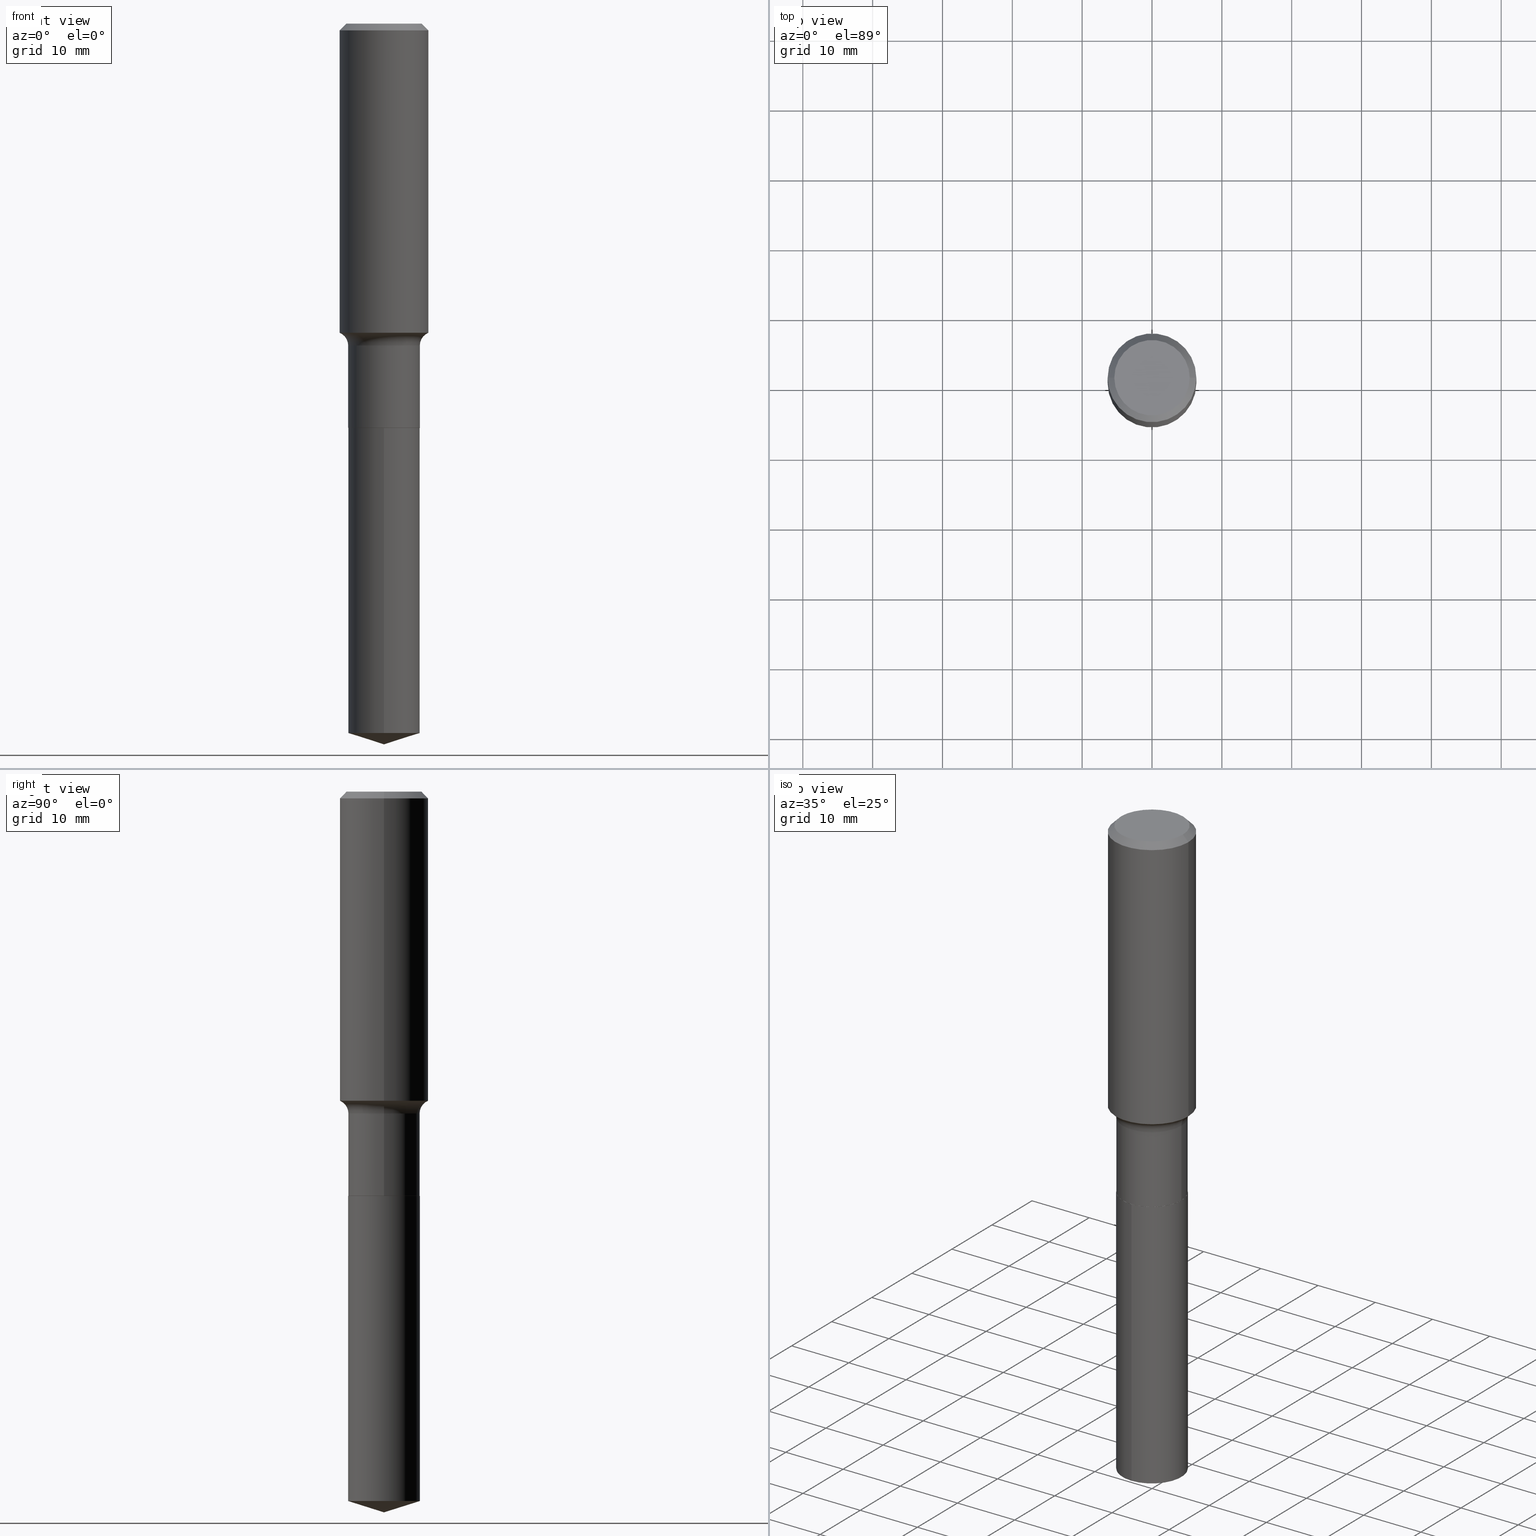
[diagram: canonical four-view strip — front | top / right | iso, engineering-drawing reading convention]
A machine part, canonical four-view strip (front | top / right | iso — engineering-drawing reading convention). The complete STEP part file that produces these views, byte-faithful:
ISO-10303-21;
HEADER;
FILE_DESCRIPTION (( 'STEP AP203' ),
    '1' );
FILE_NAME ('51621.STEP',
    '2024-04-19T13:13:10',
    ( '' ),
    ( '' ),
    'SwSTEP 2.0',
    'SolidWorks 2023',
    '' );
FILE_SCHEMA (( 'CONFIG_CONTROL_DESIGN' ));
ENDSEC;

DATA;
#1 = DIRECTION ( 'NONE',  ( -2.445468806185136877E-29, 3.491481338843145188E-15, 1.000000000000000000 ) ) ;
#2 = CIRCLE ( 'NONE', #10, 0.2124999999999999944 ) ;
#3 = PERSON_AND_ORGANIZATION ( #420, #24 ) ;
#4 = CARTESIAN_POINT ( 'NONE',  ( 4.260984847896982161E-29, -6.083557084800297028E-15, -1.742399999999999949 ) ) ;
#5 = CC_DESIGN_DATE_AND_TIME_ASSIGNMENT ( #343, #305, ( #66 ) ) ;
#6 = COORDINATED_UNIVERSAL_TIME_OFFSET ( 5, 0, .BEHIND. ) ;
#7 = PLANE ( 'NONE',  #235 ) ;
#8 = DIRECTION ( 'NONE',  ( -6.982962677686266711E-15, -1.000000000000000000, 2.704799993726993161E-15 ) ) ;
#9 = APPLICATION_PROTOCOL_DEFINITION ( 'international standard', 'config_control_design', 1994, #450 ) ;
#10 = AXIS2_PLACEMENT_3D ( 'NONE', #323, #476, #123 ) ;
#11 = CARTESIAN_POINT ( 'NONE',  ( -0.2015000000000000124, -6.522693131492816436E-15, -2.279000000000000359 ) ) ;
#12 = CARTESIAN_POINT ( 'NONE',  ( -0.2500000000000000000, 1.614810119214947994E-15, -0.03750000000000025535 ) ) ;
#13 = ORIENTED_EDGE ( 'NONE', *, *, #424, .F. ) ;
#14 = ORIENTED_EDGE ( 'NONE', *, *, #393, .F. ) ;
#15 = CLOSED_SHELL ( 'NONE', ( #25, #200, #342, #436, #328, #141, #242, #124, #267, #314, #210, #293 ) ) ;
#16 = CONICAL_SURFACE ( 'NONE', #143, 0.2500000000000000000, 0.7853981633974449483 ) ;
#17 = FACE_OUTER_BOUND ( 'NONE', #248, .T. ) ;
#18 = ORIENTED_EDGE ( 'NONE', *, *, #381, .F. ) ;
#19 = CIRCLE ( 'NONE', #398, 0.2500000000000000000 ) ;
#20 = ADVANCED_FACE ( 'NONE', ( #129 ), #116, .T. ) ;
#21 = ORIENTED_EDGE ( 'NONE', *, *, #371, .F. ) ;
#22 = CARTESIAN_POINT ( 'NONE',  ( 0.000000000000000000, 0.000000000000000000, 0.000000000000000000 ) ) ;
#23 = CARTESIAN_POINT ( 'NONE',  ( 5.573223409295926376E-29, -7.957085971223528811E-15, -2.279000000000000359 ) ) ;
#24 = ORGANIZATION ( 'UNSPECIFIED', 'UNSPECIFIED', '' ) ;
#25 = ADVANCED_FACE ( 'NONE', ( #172 ), #373, .T. ) ;
#26 = EDGE_LOOP ( 'NONE', ( #281, #158, #83 ) ) ;
#27 = CARTESIAN_POINT ( 'NONE',  ( -8.634659461838543799E-28, 1.232714386671880795E-13, 35.30757874015748143 ) ) ;
#28 = CARTESIAN_POINT ( 'NONE',  ( 0.2015000000000000124, -9.364152950777312752E-15, -2.279000000000000359 ) ) ;
#29 = CARTESIAN_POINT ( 'NONE',  ( -1.591006383764330940E-46, 2.271535455632768948E-32, 6.505936120470318766E-18 ) ) ;
#30 = APPLICATION_PROTOCOL_DEFINITION ( 'international standard', 'config_control_design', 1994, #417 ) ;
#31 = DIRECTION ( 'NONE',  ( 1.000000000000000000, -6.982962677686267499E-15, 4.876176775795936353E-29 ) ) ;
#32 = CC_DESIGN_APPROVAL ( #460, ( #223 ) ) ;
#33 = VERTEX_POINT ( 'NONE', #266 ) ;
#34 = FACE_OUTER_BOUND ( 'NONE', #404, .T. ) ;
#35 = CYLINDRICAL_SURFACE ( 'NONE', #214, 0.2500000000000000555 ) ;
#36 = ORIENTED_EDGE ( 'NONE', *, *, #160, .F. ) ;
#37 = CARTESIAN_POINT ( 'NONE',  ( 0.2500000000000000555, -1.745740669421567269E-15, 1.219044193948984228E-29 ) ) ;
#38 = CARTESIAN_POINT ( 'NONE',  ( 0.2500000000000000000, -1.846055049649501575E-15, -0.03750000000000025535 ) ) ;
#39 = LINE ( 'NONE', #104, #429 ) ;
#40 = EDGE_CURVE ( 'NONE', #324, #212, #45, .T. ) ;
#41 = DIRECTION ( 'NONE',  ( 2.445468806185136597E-29, -3.491481338843145583E-15, -1.000000000000000000 ) ) ;
#42 = LINE ( 'NONE', #98, #415 ) ;
#43 = EDGE_CURVE ( 'NONE', #324, #372, #386, .T. ) ;
#44 = DIRECTION ( 'NONE',  ( 1.000000000000000000, -6.982962677686272233E-15, 0.000000000000000000 ) ) ;
#45 = CIRCLE ( 'NONE', #354, 0.2020000000000000129 ) ;
#46 = CC_DESIGN_SECURITY_CLASSIFICATION ( #223, ( #151 ) ) ;
#47 = AXIS2_PLACEMENT_3D ( 'NONE', #225, #150, #313 ) ;
#48 = CARTESIAN_POINT ( 'NONE',  ( 9.170508023194324245E-31, -1.309305502066188567E-16, -0.03750000000000025535 ) ) ;
#49 = DATE_TIME_ROLE ( 'classification_date' ) ;
#50 = ORIENTED_EDGE ( 'NONE', *, *, #236, .T. ) ;
#51 = CARTESIAN_POINT ( 'NONE',  ( 9.779102073353615389E-29, -1.396157187791072146E-14, -3.998809644646446504 ) ) ;
#52 = EDGE_CURVE ( 'NONE', #287, #358, #423, .T. ) ;
#53 = AXIS2_PLACEMENT_3D ( 'NONE', #430, #165, #44 ) ;
#54 = ORIENTED_EDGE ( 'NONE', *, *, #251, .T. ) ;
#55 = CARTESIAN_POINT ( 'NONE',  ( 9.934677315770503263E-29, -1.418419980510906757E-14, -4.062500000000000000 ) ) ;
#56 = UNCERTAINTY_MEASURE_WITH_UNIT (LENGTH_MEASURE( 1.000000000000000082E-05 ), #356, 'distance_accuracy_value', 'NONE');
#57 = EDGE_CURVE ( 'NONE', #358, #33, #93, .T. ) ;
#58 = DIRECTION ( 'NONE',  ( -6.659769872151633666E-15, -0.9537169507482269326, 0.3007057995042729526 ) ) ;
#59 = FACE_OUTER_BOUND ( 'NONE', #322, .T. ) ;
#60 = DIRECTION ( 'NONE',  ( -6.982962677686266711E-15, -1.000000000000000000, 4.057199990590489741E-15 ) ) ;
#61 = CARTESIAN_POINT ( 'NONE',  ( 5.573223409295926376E-29, -7.957085971223528811E-15, -2.279000000000000359 ) ) ;
#62 = CARTESIAN_POINT ( 'NONE',  ( 0.000000000000000000, 0.000000000000000000, 0.000000000000000000 ) ) ;
#63 = ORIENTED_EDGE ( 'NONE', *, *, #258, .F. ) ;
#64 = ORIENTED_EDGE ( 'NONE', *, *, #352, .T. ) ;
#65 = PLANE ( 'NONE',  #437 ) ;
#66 = PRODUCT_DEFINITION ( 'UNKNOWN', '', #151, #326 ) ;
#67 = PRODUCT ( '51621', '51621', '', ( #325 ) ) ;
#68 = DIRECTION ( 'NONE',  ( -2.445468806185136597E-29, 3.491481338843145583E-15, 1.000000000000000000 ) ) ;
#69 = VERTEX_POINT ( 'NONE', #383 ) ;
#70 = AXIS2_PLACEMENT_3D ( 'NONE', #394, #360, #240 ) ;
#71 = PERSON_AND_ORGANIZATION_ROLE ( 'creator' ) ;
#72 = FACE_OUTER_BOUND ( 'NONE', #435, .T. ) ;
#73 =( GEOMETRIC_REPRESENTATION_CONTEXT ( 3 ) GLOBAL_UNCERTAINTY_ASSIGNED_CONTEXT ( ( #56 ) ) GLOBAL_UNIT_ASSIGNED_CONTEXT ( ( #356, #431, #159 ) ) REPRESENTATION_CONTEXT ( 'NONE', 'WORKASPACE' ) );
#74 = EDGE_CURVE ( 'NONE', #337, #482, #411, .T. ) ;
#75 = CYLINDRICAL_SURFACE ( 'NONE', #397, 0.2019999999999999851 ) ;
#76 = FACE_OUTER_BOUND ( 'NONE', #86, .T. ) ;
#77 = CIRCLE ( 'NONE', #178, 0.2020000000000000129 ) ;
#78 = AXIS2_PLACEMENT_3D ( 'NONE', #29, #227, #260 ) ;
#79 = DIRECTION ( 'NONE',  ( -6.982962677686266711E-15, -1.000000000000000000, 4.057199990590489741E-15 ) ) ;
#80 = FACE_OUTER_BOUND ( 'NONE', #208, .T. ) ;
#81 = DIRECTION ( 'NONE',  ( 1.000000000000000000, -6.982962677686265133E-15, 4.883557194083111780E-29 ) ) ;
#82 = DIRECTION ( 'NONE',  ( -2.445548946158121065E-29, 3.491366573840548016E-15, 1.000000000000000000 ) ) ;
#83 = ORIENTED_EDGE ( 'NONE', *, *, #286, .F. ) ;
#84 = CC_DESIGN_PERSON_AND_ORGANIZATION_ASSIGNMENT ( #416, #71, ( #66 ) ) ;
#85 = VERTEX_POINT ( 'NONE', #142 ) ;
#86 = EDGE_LOOP ( 'NONE', ( #13, #184, #167, #63 ) ) ;
#87 = VECTOR ( 'NONE', #306, 39.37007874015748143 ) ;
#88 = CARTESIAN_POINT ( 'NONE',  ( 0.2124999999999999944, -1.651955437087975937E-15, 6.505936120481282700E-18 ) ) ;
#89 = CIRCLE ( 'NONE', #78, 0.2124999999999999944 ) ;
#90 = ORIENTED_EDGE ( 'NONE', *, *, #334, .F. ) ;
#91 = ORIENTED_EDGE ( 'NONE', *, *, #236, .F. ) ;
#92 = ORIENTED_EDGE ( 'NONE', *, *, #251, .F. ) ;
#93 = CIRCLE ( 'NONE', #224, 0.2020000000000000129 ) ;
#94 = ORIENTED_EDGE ( 'NONE', *, *, #217, .F. ) ;
#95 = VECTOR ( 'NONE', #218, 39.37007874015748143 ) ;
#96 = DIRECTION ( 'NONE',  ( -2.445548946158121065E-29, 3.491366573840548016E-15, 1.000000000000000000 ) ) ;
#97 = ORIENTED_EDGE ( 'NONE', *, *, #371, .T. ) ;
#98 = CARTESIAN_POINT ( 'NONE',  ( -0.2019999999999999851, 1.435296326235402270E-15, -9.936248882314910004E-30 ) ) ;
#99 = ORIENTED_EDGE ( 'NONE', *, *, #362, .F. ) ;
#100 = AXIS2_PLACEMENT_3D ( 'NONE', #22, #128, #475 ) ;
#101 = AXIS2_PLACEMENT_3D ( 'NONE', #491, #345, #140 ) ;
#102 = EDGE_CURVE ( 'NONE', #292, #212, #39, .T. ) ;
#103 = APPROVAL_STATUS ( 'not_yet_approved' ) ;
#104 = CARTESIAN_POINT ( 'NONE',  ( -0.2015000000000000124, -6.525342358666926848E-15, -2.279000000000000359 ) ) ;
#105 = DIRECTION ( 'NONE',  ( -2.445468806185136597E-29, 3.491481338843145583E-15, 1.000000000000000000 ) ) ;
#106 = PERSON_AND_ORGANIZATION ( #420, #24 ) ;
#107 = CARTESIAN_POINT ( 'NONE',  ( 5.573223409295926376E-29, -7.957085971223528811E-15, -2.279000000000000359 ) ) ;
#108 = LOCAL_TIME ( 9, 13, 10.00000000000000000, #137 ) ;
#109 = AXIS2_PLACEMENT_3D ( 'NONE', #483, #132, #311 ) ;
#110 = VECTOR ( 'NONE', #213, 39.37007874015748143 ) ;
#111 = PERSON_AND_ORGANIZATION_ROLE ( 'classification_officer' ) ;
#112 = EDGE_CURVE ( 'NONE', #147, #378, #288, .T. ) ;
#113 = EDGE_LOOP ( 'NONE', ( #265, #433, #138, #207 ) ) ;
#114 = CARTESIAN_POINT ( 'NONE',  ( 9.935042593767365302E-29, -1.418367670622722693E-14, -4.062500000000000000 ) ) ;
#115 = VERTEX_POINT ( 'NONE', #146 ) ;
#116 = CONICAL_SURFACE ( 'NONE', #125, 124.8659371009154597, 1.265363707695892570 ) ;
#117 = AXIS2_PLACEMENT_3D ( 'NONE', #377, #339, #309 ) ;
#118 = EDGE_CURVE ( 'NONE', #212, #378, #42, .T. ) ;
#119 = AXIS2_PLACEMENT_3D ( 'NONE', #51, #243, #316 ) ;
#120 = VERTEX_POINT ( 'NONE', #271 ) ;
#121 = ADVANCED_BREP_SHAPE_REPRESENTATION ( '51621', ( #156, #333, #100 ), #73 ) ;
#122 = DIRECTION ( 'NONE',  ( -2.445468806185136597E-29, 3.491481338843145583E-15, 1.000000000000000000 ) ) ;
#123 = DIRECTION ( 'NONE',  ( 1.000000000000000000, -6.982962677686266711E-15, 4.876376119033268190E-29 ) ) ;
#124 = ADVANCED_FACE ( 'NONE', ( #72 ), #35, .T. ) ;
#125 = AXIS2_PLACEMENT_3D ( 'NONE', #369, #96, #438 ) ;
#126 = FACE_OUTER_BOUND ( 'NONE', #302, .T. ) ;
#127 = ORIENTED_EDGE ( 'NONE', *, *, #40, .F. ) ;
#128 = DIRECTION ( 'NONE',  ( 0.000000000000000000, 0.000000000000000000, 1.000000000000000000 ) ) ;
#129 = FACE_OUTER_BOUND ( 'NONE', #26, .T. ) ;
#130 = DIRECTION ( 'NONE',  ( -2.445548946158121065E-29, 3.491366573840548016E-15, 1.000000000000000000 ) ) ;
#131 = ORIENTED_EDGE ( 'NONE', *, *, #40, .T. ) ;
#132 = DIRECTION ( 'NONE',  ( -2.445468806185136597E-29, 3.491481338843145583E-15, 1.000000000000000000 ) ) ;
#133 = CC_DESIGN_PERSON_AND_ORGANIZATION_ASSIGNMENT ( #303, #443, ( #67 ) ) ;
#134 = LINE ( 'NONE', #380, #95 ) ;
#135 = EDGE_LOOP ( 'NONE', ( #391, #162, #127, #18 ) ) ;
#136 = CONICAL_SURFACE ( 'NONE', #53, 0.2015000000000000124, 0.7853981633975507526 ) ;
#137 = COORDINATED_UNIVERSAL_TIME_OFFSET ( 5, 0, .BEHIND. ) ;
#138 = ORIENTED_EDGE ( 'NONE', *, *, #307, .F. ) ;
#139 = ORIENTED_EDGE ( 'NONE', *, *, #112, .F. ) ;
#140 = DIRECTION ( 'NONE',  ( 1.000000000000000000, -6.982962677686265922E-15, 0.000000000000000000 ) ) ;
#141 = ADVANCED_FACE ( 'NONE', ( #419 ), #75, .T. ) ;
#142 = CARTESIAN_POINT ( 'NONE',  ( -0.2124999999999999944, 1.549344844111639638E-15, 6.505936120459713055E-18 ) ) ;
#143 = AXIS2_PLACEMENT_3D ( 'NONE', #385, #41, #192 ) ;
#144 = AXIS2_PLACEMENT_3D ( 'NONE', #238, #432, #206 ) ;
#145 = PERSON_AND_ORGANIZATION ( #420, #24 ) ;
#146 = CARTESIAN_POINT ( 'NONE',  ( 0.2500000000000002220, -7.829297754221866861E-15, -1.742399999999999949 ) ) ;
#147 = VERTEX_POINT ( 'NONE', #194 ) ;
#148 = CARTESIAN_POINT ( 'NONE',  ( 5.573223409295926376E-29, -7.957085971223528811E-15, -2.279000000000000359 ) ) ;
#149 = EDGE_CURVE ( 'NONE', #115, #372, #152, .T. ) ;
#150 = DIRECTION ( 'NONE',  ( -6.982962677686266711E-15, -1.000000000000000000, 3.491481338843145583E-15 ) ) ;
#151 = PRODUCT_DEFINITION_FORMATION_WITH_SPECIFIED_SOURCE ( 'ANY', '', #67, .NOT_KNOWN. ) ;
#152 = CIRCLE ( 'NONE', #47, 0.07800000000000002764 ) ;
#153 = CONICAL_SURFACE ( 'NONE', #289, 124.8659371009154597, 1.265363707695892570 ) ;
#154 = PLANE ( 'NONE',  #298 ) ;
#155 =( LENGTH_UNIT ( ) NAMED_UNIT ( * ) SI_UNIT ( $, .METRE. ) );
#156 = MANIFOLD_SOLID_BREP ( 'Body-Move/Copy2[1]', #312 ) ;
#157 = DIRECTION ( 'NONE',  ( -0.7071067811865451302, 2.468850131082231817E-15, -0.7071067811865499042 ) ) ;
#158 = ORIENTED_EDGE ( 'NONE', *, *, #52, .T. ) ;
#159 =( NAMED_UNIT ( * ) SI_UNIT ( $, .STERADIAN. ) SOLID_ANGLE_UNIT ( ) );
#160 = EDGE_CURVE ( 'NONE', #378, #372, #282, .T. ) ;
#161 = CARTESIAN_POINT ( 'NONE',  ( 4.437058601942312503E-29, -6.334943741197003797E-15, -1.814400000000000235 ) ) ;
#162 = ORIENTED_EDGE ( 'NONE', *, *, #102, .T. ) ;
#163 = CIRCLE ( 'NONE', #101, 0.2500000000000001665 ) ;
#164 = AXIS2_PLACEMENT_3D ( 'NONE', #48, #426, #321 ) ;
#165 = DIRECTION ( 'NONE',  ( -2.445468806185136597E-29, 3.491481338843145583E-15, 1.000000000000000000 ) ) ;
#166 = ORIENTED_EDGE ( 'NONE', *, *, #217, .T. ) ;
#167 = ORIENTED_EDGE ( 'NONE', *, *, #307, .T. ) ;
#168 = EDGE_CURVE ( 'NONE', #115, #147, #163, .T. ) ;
#169 = CYLINDRICAL_SURFACE ( 'NONE', #283, 0.2019999999999999851 ) ;
#170 = LINE ( 'NONE', #492, #464 ) ;
#171 = ORIENTED_EDGE ( 'NONE', *, *, #43, .F. ) ;
#172 = FACE_OUTER_BOUND ( 'NONE', #135, .T. ) ;
#173 = APPROVAL ( #490, 'UNSPECIFIED' ) ;
#174 = DIRECTION ( 'NONE',  ( 0.7071067811866199593, -2.468850131083015945E-15, 0.7071067811864750752 ) ) ;
#175 = CARTESIAN_POINT ( 'NONE',  ( 5.573223409295926376E-29, -7.957085971223528811E-15, -2.279000000000000359 ) ) ;
#176 = LOCAL_TIME ( 9, 13, 10.00000000000000000, #229 ) ;
#177 = APPROVAL_ROLE ( '' ) ;
#178 = AXIS2_PLACEMENT_3D ( 'NONE', #107, #275, #79 ) ;
#179 = ORIENTED_EDGE ( 'NONE', *, *, #381, .T. ) ;
#180 = VECTOR ( 'NONE', #157, 39.37007874015748143 ) ;
#181 = CARTESIAN_POINT ( 'NONE',  ( 4.437058601942312503E-29, -6.334943741197003797E-15, -1.814400000000000235 ) ) ;
#182 = EDGE_CURVE ( 'NONE', #147, #115, #486, .T. ) ;
#183 = CARTESIAN_POINT ( 'NONE',  ( -0.2799999999999999711, -4.345424081068723876E-15, -1.814400000000000235 ) ) ;
#184 = ORIENTED_EDGE ( 'NONE', *, *, #74, .T. ) ;
#185 = DIRECTION ( 'NONE',  ( -2.445468806185136877E-29, 3.491481338843145188E-15, 1.000000000000000000 ) ) ;
#186 = CALENDAR_DATE ( 2024, 19, 4 ) ;
#187 = CARTESIAN_POINT ( 'NONE',  ( 0.000000000000000000, 0.000000000000000000, 0.000000000000000000 ) ) ;
#188 = PERSON_AND_ORGANIZATION ( #420, #24 ) ;
#189 = DIRECTION ( 'NONE',  ( -2.445468806185136597E-29, 3.491481338843145583E-15, 1.000000000000000000 ) ) ;
#190 = AXIS2_PLACEMENT_3D ( 'NONE', #161, #203, #81 ) ;
#191 = PERSON_AND_ORGANIZATION_ROLE ( 'design_supplier' ) ;
#192 = DIRECTION ( 'NONE',  ( -1.000000000000000000, 6.982962677686266711E-15, 0.000000000000000000 ) ) ;
#193 = PRODUCT_RELATED_PRODUCT_CATEGORY ( 'detail', '', ( #67 ) ) ;
#194 = CARTESIAN_POINT ( 'NONE',  ( -0.2500000000000002220, -4.307200245400044985E-15, -1.742399999999999949 ) ) ;
#195 = CARTESIAN_POINT ( 'NONE',  ( 5.573223409295926376E-29, -7.957085971223528811E-15, -2.279000000000000359 ) ) ;
#196 = SHAPE_DEFINITION_REPRESENTATION ( #466, #121 ) ;
#197 = FACE_OUTER_BOUND ( 'NONE', #485, .T. ) ;
#198 = APPROVAL_DATE_TIME ( #390, #460 ) ;
#199 = EDGE_LOOP ( 'NONE', ( #291, #263, #318, #36 ) ) ;
#200 = ADVANCED_FACE ( 'NONE', ( #76 ), #16, .T. ) ;
#201 = SECURITY_CLASSIFICATION_LEVEL ( 'unclassified' ) ;
#202 = ORIENTED_EDGE ( 'NONE', *, *, #182, .F. ) ;
#203 = DIRECTION ( 'NONE',  ( -2.445468806185136597E-29, 3.491481338843145583E-15, 1.000000000000000000 ) ) ;
#204 = ORIENTED_EDGE ( 'NONE', *, *, #102, .F. ) ;
#205 = VECTOR ( 'NONE', #185, 39.37007874015748143 ) ;
#206 = DIRECTION ( 'NONE',  ( 1.000000000000000000, -6.982962677686266711E-15, 0.000000000000000000 ) ) ;
#207 = ORIENTED_EDGE ( 'NONE', *, *, #454, .F. ) ;
#208 = EDGE_LOOP ( 'NONE', ( #441, #97, #94, #14 ) ) ;
#209 = DIMENSIONAL_EXPONENTS ( 1.000000000000000000, 0.000000000000000000, 0.000000000000000000, 0.000000000000000000, 0.000000000000000000, 0.000000000000000000, 0.000000000000000000 ) ;
#210 = ADVANCED_FACE ( 'NONE', ( #347 ), #7, .F. ) ;
#211 = DIRECTION ( 'NONE',  ( -2.445468806185136597E-29, 3.491481338843145583E-15, 1.000000000000000000 ) ) ;
#212 = VERTEX_POINT ( 'NONE', #461 ) ;
#213 = DIRECTION ( 'NONE',  ( -2.445548946158121065E-29, 3.491366573840547621E-15, 1.000000000000000000 ) ) ;
#214 = AXIS2_PLACEMENT_3D ( 'NONE', #418, #189, #234 ) ;
#215 = AXIS2_PLACEMENT_3D ( 'NONE', #353, #122, #465 ) ;
#216 = CARTESIAN_POINT ( 'NONE',  ( 5.573223409295926376E-29, -7.957085971223528811E-15, -2.279000000000000359 ) ) ;
#217 = EDGE_CURVE ( 'NONE', #259, #452, #77, .T. ) ;
#218 = DIRECTION ( 'NONE',  ( -2.445548946158121065E-29, 3.491366573840547621E-15, 1.000000000000000000 ) ) ;
#219 = CARTESIAN_POINT ( 'NONE',  ( -0.2019999999999999574, -5.709845659640153480E-15, -1.814400000000000235 ) ) ;
#220 = ORIENTED_EDGE ( 'NONE', *, *, #182, .T. ) ;
#221 = DIRECTION ( 'NONE',  ( 6.982962677686265922E-15, 1.000000000000000000, -3.491366573840547621E-15 ) ) ;
#222 = EDGE_CURVE ( 'NONE', #372, #378, #365, .T. ) ;
#223 = SECURITY_CLASSIFICATION ( '', '', #201 ) ;
#224 = AXIS2_PLACEMENT_3D ( 'NONE', #230, #456, #8 ) ;
#225 = CARTESIAN_POINT ( 'NONE',  ( 0.2799999999999999711, -8.290173290949158003E-15, -1.814400000000000235 ) ) ;
#226 = ORIENTED_EDGE ( 'NONE', *, *, #222, .T. ) ;
#227 = DIRECTION ( 'NONE',  ( -2.445468806185136597E-29, 3.491481338843145583E-15, 1.000000000000000000 ) ) ;
#228 = CIRCLE ( 'NONE', #278, 0.2015000000000000124 ) ;
#229 = COORDINATED_UNIVERSAL_TIME_OFFSET ( 5, 0, .BEHIND. ) ;
#230 = CARTESIAN_POINT ( 'NONE',  ( 9.779102073353615389E-29, -1.396157187791072146E-14, -3.998809644646446504 ) ) ;
#231 = APPROVAL_ROLE ( '' ) ;
#232 = DIRECTION ( 'NONE',  ( 1.000000000000000000, -6.982962677686267499E-15, 4.876176775795936353E-29 ) ) ;
#233 = CALENDAR_DATE ( 2024, 19, 4 ) ;
#234 = DIRECTION ( 'NONE',  ( 1.000000000000000000, -6.982962677686267499E-15, 4.876176775795935793E-29 ) ) ;
#235 = AXIS2_PLACEMENT_3D ( 'NONE', #148, #349, #310 ) ;
#236 = EDGE_CURVE ( 'NONE', #69, #482, #449, .T. ) ;
#237 = CIRCLE ( 'NONE', #119, 0.2020000000000000129 ) ;
#238 = CARTESIAN_POINT ( 'NONE',  ( 4.437058601942312503E-29, -6.334943741197003797E-15, -1.814400000000000235 ) ) ;
#239 = CYLINDRICAL_SURFACE ( 'NONE', #255, 0.2020000000000000129 ) ;
#240 = DIRECTION ( 'NONE',  ( -1.000000000000000000, 6.982962677686266711E-15, 0.000000000000000000 ) ) ;
#241 = PERSON_AND_ORGANIZATION ( #420, #24 ) ;
#242 = ADVANCED_FACE ( 'NONE', ( #280 ), #344, .F. ) ;
#243 = DIRECTION ( 'NONE',  ( -2.445548946158121065E-29, 3.491366573840548016E-15, 1.000000000000000000 ) ) ;
#244 = ORIENTED_EDGE ( 'NONE', *, *, #57, .T. ) ;
#245 = PERSON_AND_ORGANIZATION_ROLE ( 'creator' ) ;
#246 = CARTESIAN_POINT ( 'NONE',  ( 9.170508023194324245E-31, -1.309305502066188567E-16, -0.03750000000000025535 ) ) ;
#247 = LINE ( 'NONE', #12, #180 ) ;
#248 = EDGE_LOOP ( 'NONE', ( #204, #331, #179, #297 ) ) ;
#249 = EDGE_LOOP ( 'NONE', ( #139, #392, #439, #226 ) ) ;
#250 = LOCAL_TIME ( 9, 13, 10.00000000000000000, #274 ) ;
#251 = EDGE_CURVE ( 'NONE', #452, #259, #319, .T. ) ;
#252 = AXIS2_PLACEMENT_3D ( 'NONE', #183, #458, #341 ) ;
#253 = CIRCLE ( 'NONE', #487, 0.2015000000000000124 ) ;
#254 = LINE ( 'NONE', #55, #315 ) ;
#255 = AXIS2_PLACEMENT_3D ( 'NONE', #195, #425, #387 ) ;
#256 = ORIENTED_EDGE ( 'NONE', *, *, #414, .F. ) ;
#257 = DIRECTION ( 'NONE',  ( -2.445468806185136877E-29, 3.491481338843145188E-15, 1.000000000000000000 ) ) ;
#258 = EDGE_CURVE ( 'NONE', #85, #69, #247, .T. ) ;
#259 = VERTEX_POINT ( 'NONE', #389 ) ;
#260 = DIRECTION ( 'NONE',  ( 1.000000000000000000, -6.982962677686266711E-15, 4.876376119033268190E-29 ) ) ;
#261 = VECTOR ( 'NONE', #174, 39.37007874015748143 ) ;
#262 = DIRECTION ( 'NONE',  ( 1.000000000000000000, -6.982962677686267499E-15, 4.876176775795935793E-29 ) ) ;
#263 = ORIENTED_EDGE ( 'NONE', *, *, #272, .T. ) ;
#264 = DIRECTION ( 'NONE',  ( 1.000000000000000000, -6.982962677686265133E-15, 0.000000000000000000 ) ) ;
#265 = ORIENTED_EDGE ( 'NONE', *, *, #168, .T. ) ;
#266 = CARTESIAN_POINT ( 'NONE',  ( -1.410558460892528341E-15, -0.2020000000000140572, -3.998809644646445616 ) ) ;
#267 = ADVANCED_FACE ( 'NONE', ( #473 ), #472, .T. ) ;
#268 = APPROVAL_PERSON_ORGANIZATION ( #145, #460, #277 ) ;
#269 = DIRECTION ( 'NONE',  ( 1.000000000000000000, -6.982962677686265922E-15, 0.000000000000000000 ) ) ;
#270 = COORDINATED_UNIVERSAL_TIME_OFFSET ( 5, 0, .BEHIND. ) ;
#271 = CARTESIAN_POINT ( 'NONE',  ( 0.2015000000000000124, -9.364152950777312752E-15, -2.279000000000000359 ) ) ;
#272 = EDGE_CURVE ( 'NONE', #212, #324, #276, .T. ) ;
#273 = DIRECTION ( 'NONE',  ( 0.7071067811865451302, -7.319954787623248157E-15, -0.7071067811865499042 ) ) ;
#274 = COORDINATED_UNIVERSAL_TIME_OFFSET ( 5, 0, .BEHIND. ) ;
#275 = DIRECTION ( 'NONE',  ( -2.445548946158121065E-29, 3.491366573840548016E-15, 1.000000000000000000 ) ) ;
#276 = CIRCLE ( 'NONE', #215, 0.2020000000000000129 ) ;
#277 = APPROVAL_ROLE ( '' ) ;
#278 = AXIS2_PLACEMENT_3D ( 'NONE', #61, #368, #340 ) ;
#279 = CC_DESIGN_PERSON_AND_ORGANIZATION_ASSIGNMENT ( #106, #245, ( #151 ) ) ;
#280 = FACE_OUTER_BOUND ( 'NONE', #249, .T. ) ;
#281 = ORIENTED_EDGE ( 'NONE', *, *, #352, .F. ) ;
#282 = CIRCLE ( 'NONE', #117, 0.2019999999999999574 ) ;
#283 = AXIS2_PLACEMENT_3D ( 'NONE', #62, #399, #31 ) ;
#284 = CARTESIAN_POINT ( 'NONE',  ( 5.573223409295926376E-29, -7.957085971223528811E-15, -2.279000000000000359 ) ) ;
#285 = DIRECTION ( 'NONE',  ( -2.445468806185136597E-29, 3.491481338843145583E-15, 1.000000000000000000 ) ) ;
#286 = EDGE_CURVE ( 'NONE', #33, #358, #237, .T. ) ;
#287 = VERTEX_POINT ( 'NONE', #114 ) ;
#288 = CIRCLE ( 'NONE', #252, 0.07800000000000002764 ) ;
#289 = AXIS2_PLACEMENT_3D ( 'NONE', #27, #453, #379 ) ;
#290 = LINE ( 'NONE', #400, #110 ) ;
#291 = ORIENTED_EDGE ( 'NONE', *, *, #118, .F. ) ;
#292 = VERTEX_POINT ( 'NONE', #11 ) ;
#293 = ADVANCED_FACE ( 'NONE', ( #17 ), #136, .T. ) ;
#294 = CYLINDRICAL_SURFACE ( 'NONE', #406, 0.2500000000000000555 ) ;
#295 = ORIENTED_EDGE ( 'NONE', *, *, #454, .T. ) ;
#296 = CARTESIAN_POINT ( 'NONE',  ( 0.2019999999999999574, -7.745502202089629956E-15, -1.814400000000000235 ) ) ;
#297 = ORIENTED_EDGE ( 'NONE', *, *, #272, .F. ) ;
#298 = AXIS2_PLACEMENT_3D ( 'NONE', #467, #329, #403 ) ;
#299 = LINE ( 'NONE', #28, #261 ) ;
#300 = ORIENTED_EDGE ( 'NONE', *, *, #468, .F. ) ;
#301 = DATE_AND_TIME ( #488, #108 ) ;
#302 = EDGE_LOOP ( 'NONE', ( #21, #244, #408, #92 ) ) ;
#303 = PERSON_AND_ORGANIZATION ( #420, #24 ) ;
#304 = CARTESIAN_POINT ( 'NONE',  ( 9.935045796824223452E-29, -1.418367670622722693E-14, -4.062500000000000000 ) ) ;
#305 = DATE_TIME_ROLE ( 'creation_date' ) ;
#306 = DIRECTION ( 'NONE',  ( -2.445468806185136877E-29, 3.491481338843145188E-15, 1.000000000000000000 ) ) ;
#307 = EDGE_CURVE ( 'NONE', #482, #69, #19, .T. ) ;
#308 = ORIENTED_EDGE ( 'NONE', *, *, #149, .F. ) ;
#309 = DIRECTION ( 'NONE',  ( 1.000000000000000000, -6.982962677686266711E-15, 0.000000000000000000 ) ) ;
#310 = DIRECTION ( 'NONE',  ( 1.000000000000000000, -6.982962677686265922E-15, 4.876176775795935793E-29 ) ) ;
#311 = DIRECTION ( 'NONE',  ( 1.000000000000000000, -6.982962677686272233E-15, 0.000000000000000000 ) ) ;
#312 = CLOSED_SHELL ( 'NONE', ( #481, #20, #444, #359, #428 ) ) ;
#313 = DIRECTION ( 'NONE',  ( 1.000000000000000000, -6.982962677686280910E-15, 0.000000000000000000 ) ) ;
#314 = ADVANCED_FACE ( 'NONE', ( #197 ), #154, .F. ) ;
#315 = VECTOR ( 'NONE', #58, 39.37007874015748854 ) ;
#316 = DIRECTION ( 'NONE',  ( -6.982962677686266711E-15, -1.000000000000000000, 2.704799993726993161E-15 ) ) ;
#317 = ORIENTED_EDGE ( 'NONE', *, *, #52, .F. ) ;
#318 = ORIENTED_EDGE ( 'NONE', *, *, #43, .T. ) ;
#319 = CIRCLE ( 'NONE', #384, 0.2020000000000000129 ) ;
#320 = CC_DESIGN_PERSON_AND_ORGANIZATION_ASSIGNMENT ( #3, #111, ( #223 ) ) ;
#321 = DIRECTION ( 'NONE',  ( 1.000000000000000000, -6.982962677686266711E-15, 0.000000000000000000 ) ) ;
#322 = EDGE_LOOP ( 'NONE', ( #317, #64, #401 ) ) ;
#323 = CARTESIAN_POINT ( 'NONE',  ( -1.591006383764330940E-46, 2.271535455632768948E-32, 6.505936120470318766E-18 ) ) ;
#324 = VERTEX_POINT ( 'NONE', #445 ) ;
#325 = MECHANICAL_CONTEXT ( 'NONE', #450, 'mechanical' ) ;
#326 = DESIGN_CONTEXT ( 'detailed design', #417, 'design' ) ;
#327 = APPROVAL_PERSON_ORGANIZATION ( #457, #407, #231 ) ;
#328 = ADVANCED_FACE ( 'NONE', ( #434 ), #169, .T. ) ;
#329 = DIRECTION ( 'NONE',  ( 2.438088387897960049E-29, -3.491481338843145188E-15, -1.000000000000000000 ) ) ;
#330 = ORIENTED_EDGE ( 'NONE', *, *, #160, .T. ) ;
#331 = ORIENTED_EDGE ( 'NONE', *, *, #362, .T. ) ;
#332 = APPROVAL_PERSON_ORGANIZATION ( #188, #173, #177 ) ;
#333 = MANIFOLD_SOLID_BREP ( 'Body-Move/Copy2[2]', #15 ) ;
#334 = EDGE_CURVE ( 'NONE', #85, #337, #2, .T. ) ;
#335 = AXIS2_PLACEMENT_3D ( 'NONE', #23, #130, #60 ) ;
#336 = ORIENTED_EDGE ( 'NONE', *, *, #112, .T. ) ;
#337 = VERTEX_POINT ( 'NONE', #88 ) ;
#338 = DIRECTION ( 'NONE',  ( 1.000000000000000000, -6.982962677686265133E-15, 4.883557194083111780E-29 ) ) ;
#339 = DIRECTION ( 'NONE',  ( -2.445468806185136597E-29, 3.491481338843145583E-15, 1.000000000000000000 ) ) ;
#340 = DIRECTION ( 'NONE',  ( 1.000000000000000000, -6.982962677686272233E-15, 0.000000000000000000 ) ) ;
#341 = DIRECTION ( 'NONE',  ( -1.000000000000000000, 7.105427357601001859E-15, 0.000000000000000000 ) ) ;
#342 = ADVANCED_FACE ( 'NONE', ( #479 ), #294, .T. ) ;
#343 = DATE_AND_TIME ( #186, #176 ) ;
#344 = TOROIDAL_SURFACE ( 'NONE', #190, 0.2799999999999999711, 0.07800000000000006928 ) ;
#345 = DIRECTION ( 'NONE',  ( -2.445468806185136597E-29, 3.491481338843145583E-15, 1.000000000000000000 ) ) ;
#346 = DATE_AND_TIME ( #348, #446 ) ;
#347 = FACE_OUTER_BOUND ( 'NONE', #480, .T. ) ;
#348 = CALENDAR_DATE ( 2024, 19, 4 ) ;
#349 = DIRECTION ( 'NONE',  ( -2.438088387897960049E-29, 3.491481338843145188E-15, 1.000000000000000000 ) ) ;
#350 = APPROVAL_STATUS ( 'not_yet_approved' ) ;
#351 = LOCAL_TIME ( 9, 13, 10.00000000000000000, #270 ) ;
#352 = EDGE_CURVE ( 'NONE', #287, #33, #254, .T. ) ;
#353 = CARTESIAN_POINT ( 'NONE',  ( 5.572000674892834695E-29, -7.955340230554108096E-15, -2.278500000000000192 ) ) ;
#354 = AXIS2_PLACEMENT_3D ( 'NONE', #413, #451, #264 ) ;
#355 = DATE_AND_TIME ( #233, #351 ) ;
#356 =( CONVERSION_BASED_UNIT ( 'INCH', #462 ) LENGTH_UNIT ( ) NAMED_UNIT ( #209 ) );
#357 = DIRECTION ( 'NONE',  ( 1.000000000000000000, -6.982962677686266711E-15, 0.000000000000000000 ) ) ;
#358 = VERTEX_POINT ( 'NONE', #363 ) ;
#359 = ADVANCED_FACE ( 'NONE', ( #126 ), #484, .T. ) ;
#360 = DIRECTION ( 'NONE',  ( 2.445468806185136597E-29, -3.491481338843145583E-15, -1.000000000000000000 ) ) ;
#361 = TOROIDAL_SURFACE ( 'NONE', #376, 0.2799999999999999711, 0.07800000000000006928 ) ;
#362 = EDGE_CURVE ( 'NONE', #292, #120, #253, .T. ) ;
#363 = CARTESIAN_POINT ( 'NONE',  ( 1.435296326235500286E-15, 0.2019999999999860518, -3.998809644646446948 ) ) ;
#364 = DIRECTION ( 'NONE',  ( -2.445468806185136597E-29, 3.491481338843145583E-15, 1.000000000000000000 ) ) ;
#365 = CIRCLE ( 'NONE', #144, 0.2019999999999999574 ) ;
#366 = DIRECTION ( 'NONE',  ( -2.445468806185136597E-29, 3.491481338843145583E-15, 1.000000000000000000 ) ) ;
#367 = EDGE_LOOP ( 'NONE', ( #412, #90, #474, #50 ) ) ;
#368 = DIRECTION ( 'NONE',  ( -2.445468806185136597E-29, 3.491481338843145583E-15, 1.000000000000000000 ) ) ;
#369 = CARTESIAN_POINT ( 'NONE',  ( -8.634659461838543799E-28, 1.232714386671880795E-13, 35.30757874015748143 ) ) ;
#370 = DIRECTION ( 'NONE',  ( 1.000000000000000000, -6.982962677686272233E-15, 0.000000000000000000 ) ) ;
#371 = EDGE_CURVE ( 'NONE', #358, #452, #290, .T. ) ;
#372 = VERTEX_POINT ( 'NONE', #296 ) ;
#373 = CONICAL_SURFACE ( 'NONE', #109, 0.2015000000000000124, 0.7853981633975507526 ) ;
#374 = CC_DESIGN_APPROVAL ( #407, ( #151 ) ) ;
#375 = VECTOR ( 'NONE', #382, 39.37007874015748143 ) ;
#376 = AXIS2_PLACEMENT_3D ( 'NONE', #181, #364, #338 ) ;
#377 = CARTESIAN_POINT ( 'NONE',  ( 4.437058601942312503E-29, -6.334943741197003797E-15, -1.814400000000000235 ) ) ;
#378 = VERTEX_POINT ( 'NONE', #219 ) ;
#379 = DIRECTION ( 'NONE',  ( -6.982962677686266711E-15, -1.000000000000000000, 3.500519750498693388E-15 ) ) ;
#380 = CARTESIAN_POINT ( 'NONE',  ( -1.410558460892570150E-15, -0.2020000000000079787, -2.278999999999999471 ) ) ;
#381 = EDGE_CURVE ( 'NONE', #120, #324, #299, .T. ) ;
#382 = DIRECTION ( 'NONE',  ( 6.776566513254258926E-15, 0.9537169507482290420, 0.3007057995042663467 ) ) ;
#383 = CARTESIAN_POINT ( 'NONE',  ( -0.2500000000000000000, -1.330886978103206602E-15, -0.03750000000000025535 ) ) ;
#384 = AXIS2_PLACEMENT_3D ( 'NONE', #284, #82, #470 ) ;
#385 = CARTESIAN_POINT ( 'NONE',  ( 9.170508023194324245E-31, -1.309305502066188567E-16, -0.03750000000000025535 ) ) ;
#386 = LINE ( 'NONE', #459, #87 ) ;
#387 = DIRECTION ( 'NONE',  ( -6.982962677686266711E-15, -1.000000000000000000, 4.057199990590489741E-15 ) ) ;
#388 = CC_DESIGN_DATE_AND_TIME_ASSIGNMENT ( #346, #49, ( #223 ) ) ;
#389 = CARTESIAN_POINT ( 'NONE',  ( -1.410558460892570150E-15, -0.2020000000000079787, -2.278999999999999471 ) ) ;
#390 = DATE_AND_TIME ( #422, #250 ) ;
#391 = ORIENTED_EDGE ( 'NONE', *, *, #468, .T. ) ;
#392 = ORIENTED_EDGE ( 'NONE', *, *, #168, .F. ) ;
#393 = EDGE_CURVE ( 'NONE', #33, #259, #134, .T. ) ;
#394 = CARTESIAN_POINT ( 'NONE',  ( 9.170508023194324245E-31, -1.309305502066188567E-16, -0.03750000000000025535 ) ) ;
#395 = ORIENTED_EDGE ( 'NONE', *, *, #118, .T. ) ;
#396 = CC_DESIGN_APPROVAL ( #173, ( #66 ) ) ;
#397 = AXIS2_PLACEMENT_3D ( 'NONE', #187, #68, #232 ) ;
#398 = AXIS2_PLACEMENT_3D ( 'NONE', #246, #285, #357 ) ;
#399 = DIRECTION ( 'NONE',  ( -2.445468806185136597E-29, 3.491481338843145583E-15, 1.000000000000000000 ) ) ;
#400 = CARTESIAN_POINT ( 'NONE',  ( 1.435296326235458082E-15, 0.2019999999999920748, -2.279000000000000803 ) ) ;
#401 = ORIENTED_EDGE ( 'NONE', *, *, #57, .F. ) ;
#402 = FACE_OUTER_BOUND ( 'NONE', #447, .T. ) ;
#403 = DIRECTION ( 'NONE',  ( -1.000000000000000000, 6.982962677686265922E-15, -4.876176775795935793E-29 ) ) ;
#404 = EDGE_LOOP ( 'NONE', ( #202, #336, #330, #308 ) ) ;
#405 = LINE ( 'NONE', #37, #205 ) ;
#406 = AXIS2_PLACEMENT_3D ( 'NONE', #440, #211, #262 ) ;
#407 = APPROVAL ( #103, 'UNSPECIFIED' ) ;
#408 = ORIENTED_EDGE ( 'NONE', *, *, #393, .T. ) ;
#409 = ORIENTED_EDGE ( 'NONE', *, *, #334, .T. ) ;
#410 = DIRECTION ( 'NONE',  ( 2.445548946158120785E-29, -3.491366573840547621E-15, -1.000000000000000000 ) ) ;
#411 = LINE ( 'NONE', #38, #463 ) ;
#412 = ORIENTED_EDGE ( 'NONE', *, *, #74, .F. ) ;
#413 = CARTESIAN_POINT ( 'NONE',  ( 5.572000674892834695E-29, -7.955340230554108096E-15, -2.278500000000000192 ) ) ;
#414 = EDGE_CURVE ( 'NONE', #147, #69, #170, .T. ) ;
#415 = VECTOR ( 'NONE', #1, 39.37007874015748143 ) ;
#416 = PERSON_AND_ORGANIZATION ( #420, #24 ) ;
#417 = APPLICATION_CONTEXT ( 'configuration controlled 3d designs of mechanical parts and assemblies' ) ;
#418 = CARTESIAN_POINT ( 'NONE',  ( 0.000000000000000000, 0.000000000000000000, 0.000000000000000000 ) ) ;
#419 = FACE_OUTER_BOUND ( 'NONE', #199, .T. ) ;
#420 = PERSON ( 'UNSPECIFIED', 'UNSPECIFIED', 'UNSPECIFIED', ('UNSPECIFIED'), ('UNSPECIFIED'), ('UNSPECIFIED') ) ;
#421 = DIRECTION ( 'NONE',  ( -0.7071067811866199593, 7.493145998870616062E-15, 0.7071067811864750752 ) ) ;
#422 = CALENDAR_DATE ( 2024, 19, 4 ) ;
#423 = LINE ( 'NONE', #304, #375 ) ;
#424 = EDGE_CURVE ( 'NONE', #337, #85, #89, .T. ) ;
#425 = DIRECTION ( 'NONE',  ( -2.445548946158121065E-29, 3.491366573840548016E-15, 1.000000000000000000 ) ) ;
#426 = DIRECTION ( 'NONE',  ( -2.445468806185136597E-29, 3.491481338843145583E-15, 1.000000000000000000 ) ) ;
#427 = CARTESIAN_POINT ( 'NONE',  ( 0.2500000000000000000, -1.876671219628185362E-15, -0.03750000000000025535 ) ) ;
#428 = ADVANCED_FACE ( 'NONE', ( #402 ), #65, .F. ) ;
#429 = VECTOR ( 'NONE', #421, 39.37007874015748143 ) ;
#430 = CARTESIAN_POINT ( 'NONE',  ( 5.573223409295926376E-29, -7.957085971223528811E-15, -2.279000000000000359 ) ) ;
#431 =( NAMED_UNIT ( * ) PLANE_ANGLE_UNIT ( ) SI_UNIT ( $, .RADIAN. ) );
#432 = DIRECTION ( 'NONE',  ( -2.445468806185136597E-29, 3.491481338843145583E-15, 1.000000000000000000 ) ) ;
#433 = ORIENTED_EDGE ( 'NONE', *, *, #414, .T. ) ;
#434 = FACE_OUTER_BOUND ( 'NONE', #489, .T. ) ;
#435 = EDGE_LOOP ( 'NONE', ( #256, #220, #295, #91 ) ) ;
#436 = ADVANCED_FACE ( 'NONE', ( #34 ), #361, .F. ) ;
#437 = AXIS2_PLACEMENT_3D ( 'NONE', #175, #410, #221 ) ;
#438 = DIRECTION ( 'NONE',  ( -6.982962677686266711E-15, -1.000000000000000000, 3.500519750498693388E-15 ) ) ;
#439 = ORIENTED_EDGE ( 'NONE', *, *, #149, .T. ) ;
#440 = CARTESIAN_POINT ( 'NONE',  ( 0.000000000000000000, 0.000000000000000000, 0.000000000000000000 ) ) ;
#441 = ORIENTED_EDGE ( 'NONE', *, *, #286, .T. ) ;
#442 = CARTESIAN_POINT ( 'NONE',  ( 1.435296326235500286E-15, 0.2019999999999920748, -2.279000000000000803 ) ) ;
#443 = PERSON_AND_ORGANIZATION_ROLE ( 'design_owner' ) ;
#444 = ADVANCED_FACE ( 'NONE', ( #59 ), #153, .T. ) ;
#445 = CARTESIAN_POINT ( 'NONE',  ( 0.2020000000000000129, -9.365898691446733467E-15, -2.278500000000000192 ) ) ;
#446 = LOCAL_TIME ( 9, 13, 10.00000000000000000, #6 ) ;
#447 = EDGE_LOOP ( 'NONE', ( #166, #54 ) ) ;
#448 = AXIS2_PLACEMENT_3D ( 'NONE', #4, #105, #269 ) ;
#449 = CIRCLE ( 'NONE', #164, 0.2500000000000000000 ) ;
#450 = APPLICATION_CONTEXT ( 'configuration controlled 3d designs of mechanical parts and assemblies' ) ;
#451 = DIRECTION ( 'NONE',  ( -2.445468806185136597E-29, 3.491481338843145583E-15, 1.000000000000000000 ) ) ;
#452 = VERTEX_POINT ( 'NONE', #442 ) ;
#453 = DIRECTION ( 'NONE',  ( -2.445548946158121065E-29, 3.491366573840548016E-15, 1.000000000000000000 ) ) ;
#454 = EDGE_CURVE ( 'NONE', #115, #482, #405, .T. ) ;
#455 = APPROVAL_DATE_TIME ( #301, #173 ) ;
#456 = DIRECTION ( 'NONE',  ( -2.445548946158121065E-29, 3.491366573840548016E-15, 1.000000000000000000 ) ) ;
#457 = PERSON_AND_ORGANIZATION ( #420, #24 ) ;
#458 = DIRECTION ( 'NONE',  ( 7.105427357601001859E-15, 1.000000000000000000, -3.491481338843145583E-15 ) ) ;
#459 = CARTESIAN_POINT ( 'NONE',  ( 0.2019999999999999851, -1.410558460892625962E-15, 9.849877087107791198E-30 ) ) ;
#460 = APPROVAL ( #350, 'UNSPECIFIED' ) ;
#461 = CARTESIAN_POINT ( 'NONE',  ( -0.2020000000000000129, -5.709845659640153480E-15, -2.278500000000000192 ) ) ;
#462 = LENGTH_MEASURE_WITH_UNIT ( LENGTH_MEASURE( 0.02539999999999999897 ), #155 );
#463 = VECTOR ( 'NONE', #273, 39.37007874015748143 ) ;
#464 = VECTOR ( 'NONE', #257, 39.37007874015748143 ) ;
#465 = DIRECTION ( 'NONE',  ( 1.000000000000000000, -6.982962677686265133E-15, 0.000000000000000000 ) ) ;
#466 = PRODUCT_DEFINITION_SHAPE ( 'NONE', 'NONE',  #66 ) ;
#467 = CARTESIAN_POINT ( 'NONE',  ( -7.955031918821654702E-47, 1.135767727816384474E-32, 3.252968060235159383E-18 ) ) ;
#468 = EDGE_CURVE ( 'NONE', #120, #292, #228, .T. ) ;
#469 = APPROVAL_DATE_TIME ( #355, #407 ) ;
#470 = DIRECTION ( 'NONE',  ( -6.982962677686266711E-15, -1.000000000000000000, 4.057199990590489741E-15 ) ) ;
#471 = ORIENTED_EDGE ( 'NONE', *, *, #424, .T. ) ;
#472 = CONICAL_SURFACE ( 'NONE', #70, 0.2500000000000000000, 0.7853981633974449483 ) ;
#473 = FACE_OUTER_BOUND ( 'NONE', #367, .T. ) ;
#474 = ORIENTED_EDGE ( 'NONE', *, *, #258, .T. ) ;
#475 = DIRECTION ( 'NONE',  ( 1.000000000000000000, 0.000000000000000000, 0.000000000000000000 ) ) ;
#476 = DIRECTION ( 'NONE',  ( -2.445468806185136597E-29, 3.491481338843145583E-15, 1.000000000000000000 ) ) ;
#477 = CC_DESIGN_PERSON_AND_ORGANIZATION_ASSIGNMENT ( #241, #191, ( #151 ) ) ;
#478 = ORIENTED_EDGE ( 'NONE', *, *, #222, .F. ) ;
#479 = FACE_OUTER_BOUND ( 'NONE', #113, .T. ) ;
#480 = EDGE_LOOP ( 'NONE', ( #300, #99 ) ) ;
#481 = ADVANCED_FACE ( 'NONE', ( #80 ), #239, .T. ) ;
#482 = VERTEX_POINT ( 'NONE', #427 ) ;
#483 = CARTESIAN_POINT ( 'NONE',  ( 5.573223409295926376E-29, -7.957085971223528811E-15, -2.279000000000000359 ) ) ;
#484 = CYLINDRICAL_SURFACE ( 'NONE', #335, 0.2020000000000000129 ) ;
#485 = EDGE_LOOP ( 'NONE', ( #409, #471 ) ) ;
#486 = CIRCLE ( 'NONE', #448, 0.2500000000000001665 ) ;
#487 = AXIS2_PLACEMENT_3D ( 'NONE', #216, #366, #370 ) ;
#488 = CALENDAR_DATE ( 2024, 19, 4 ) ;
#489 = EDGE_LOOP ( 'NONE', ( #131, #395, #478, #171 ) ) ;
#490 = APPROVAL_STATUS ( 'not_yet_approved' ) ;
#491 = CARTESIAN_POINT ( 'NONE',  ( 4.260984847896982161E-29, -6.083557084800297028E-15, -1.742399999999999949 ) ) ;
#492 = CARTESIAN_POINT ( 'NONE',  ( -0.2500000000000000555, 1.776356839400250859E-15, -1.229733772563726866E-29 ) ) ;
ENDSEC;
END-ISO-10303-21;
